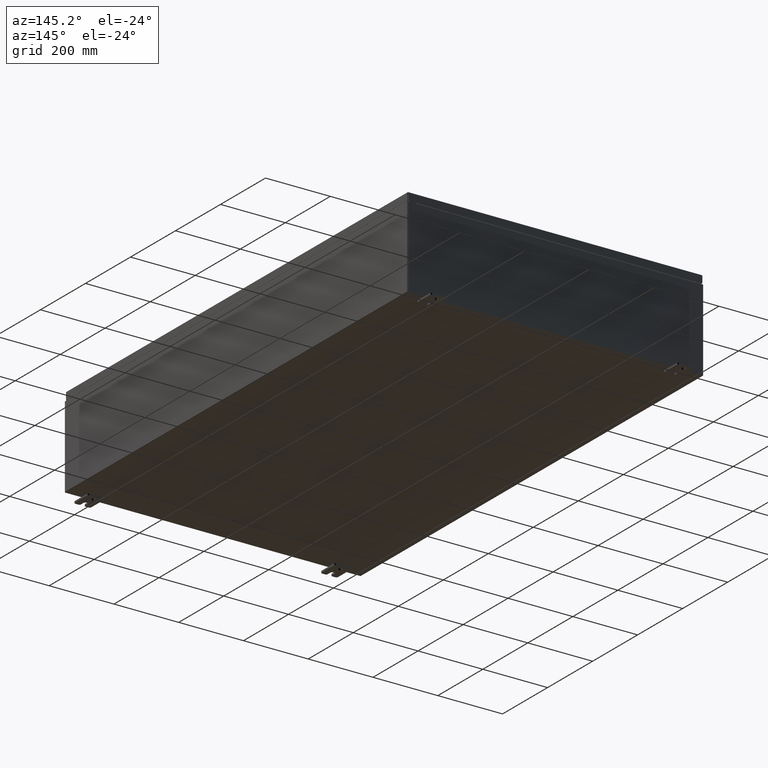
[diagram: clean part render]
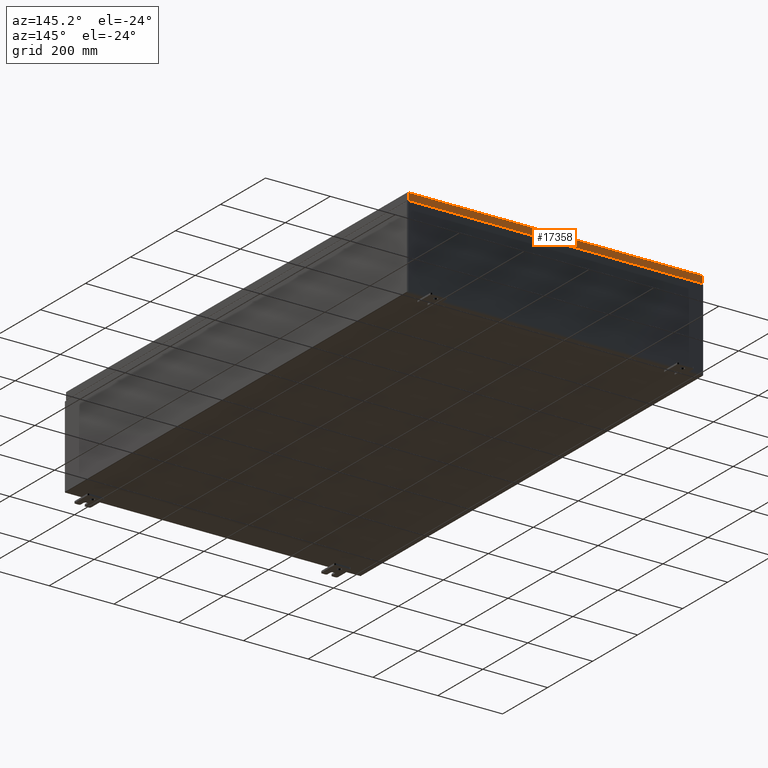
[diagram: same view with one face highlighted and labeled with its STEP entity id]
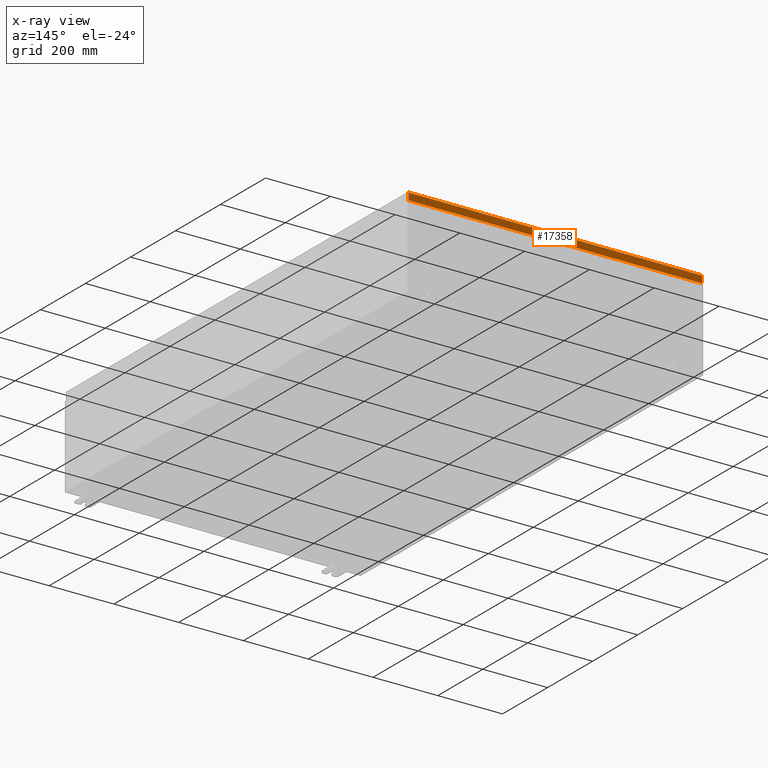
[diagram: x-ray of the same camera — body ghosted, the highlighted face saturated]
A machine part, auxiliary view. The second image highlights one B-rep face of the part: STEP entity #17358.
The next image is the same camera in x-ray: the body ghosted, the highlighted face saturated — about 0% of this face is hidden behind the body in this view.
In plain terms, the highlighted planar face has unit normal (0, -1, -0).
Its self-contained STEP definition (entity closure, byte-faithful):
#1224 = CARTESIAN_POINT ( 'NONE',  ( -1.847420896432932100E-029, 29.93750000000000700, 1.518894566415475700E-013 ) ) ;
#1255 = CARTESIAN_POINT ( 'NONE',  ( 17.84865786437626800, 29.93750000000000700, 1.518894566415475700E-013 ) ) ;
#2786 = LINE ( 'NONE', #53198, #29495 ) ;
#4546 = CARTESIAN_POINT ( 'NONE',  ( -17.93749999999999600, 29.93750000000000700, -0.08769999999999550400 ) ) ;
#9261 = EDGE_CURVE ( 'NONE', #26792, #51749, #12856, .T. ) ;
#12856 = LINE ( 'NONE', #4546, #41320 ) ;
#14862 = VERTEX_POINT ( 'NONE', #43877 ) ;
#15089 = VECTOR ( 'NONE', #38656, 39.37007874015748100 ) ;
#15780 = ORIENTED_EDGE ( 'NONE', *, *, #9261, .F. ) ;
#15812 = DIRECTION ( 'NONE',  ( 1.000000000000000000, 1.751623080406021300E-046, 1.218385167906012900E-016 ) ) ;
#16660 = CARTESIAN_POINT ( 'NONE',  ( 17.84865786437626800, 29.93750000000001100, -0.9376999999999997600 ) ) ;
#17302 = DIRECTION ( 'NONE',  ( 6.170925750089124300E-031, -1.000000000000000000, -5.064839849203706200E-015 ) ) ;
#17358 = ADVANCED_FACE ( 'NONE', ( #45728 ), #33253, .F. ) ;
#18042 = EDGE_CURVE ( 'NONE', #51749, #14862, #46199, .T. ) ;
#21432 = DIRECTION ( 'NONE',  ( -0.0000000000000000000, 5.064839849203706200E-015, -1.000000000000000000 ) ) ;
#22115 = ORIENTED_EDGE ( 'NONE', *, *, #50419, .T. ) ;
#26792 = VERTEX_POINT ( 'NONE', #59974 ) ;
#29325 = LINE ( 'NONE', #1255, #15089 ) ;
#29495 = VECTOR ( 'NONE', #15812, 39.37007874015748100 ) ;
#31966 = VECTOR ( 'NONE', #21432, 39.37007874015748100 ) ;
#33253 = PLANE ( 'NONE',  #54943 ) ;
#38656 = DIRECTION ( 'NONE',  ( 0.0000000000000000000, 5.064839849203706200E-015, -1.000000000000000000 ) ) ;
#40358 = EDGE_LOOP ( 'NONE', ( #15780, #22115, #50144, #60896 ) ) ;
#41320 = VECTOR ( 'NONE', #41909, 39.37007874015748100 ) ;
#41909 = DIRECTION ( 'NONE',  ( -1.000000000000000000, -6.170925750089125200E-031, -3.189293793798670500E-045 ) ) ;
#43877 = CARTESIAN_POINT ( 'NONE',  ( -17.84865786437626400, 29.93750000000001100, -0.9377000000000042000 ) ) ;
#45728 = FACE_OUTER_BOUND ( 'NONE', #40358, .T. ) ;
#46199 = LINE ( 'NONE', #48089, #31966 ) ;
#47599 = CARTESIAN_POINT ( 'NONE',  ( -17.84865786437626800, 29.93750000000000700, -0.08769999999999550400 ) ) ;
#48089 = CARTESIAN_POINT ( 'NONE',  ( -17.84865786437626400, 29.93750000000000700, -0.07469999999999962800 ) ) ;
#50144 = ORIENTED_EDGE ( 'NONE', *, *, #61316, .F. ) ;
#50419 = EDGE_CURVE ( 'NONE', #26792, #53229, #29325, .T. ) ;
#51749 = VERTEX_POINT ( 'NONE', #47599 ) ;
#53198 = CARTESIAN_POINT ( 'NONE',  ( -17.93749999999999600, 29.93750000000001100, -0.9377000000000042000 ) ) ;
#53229 = VERTEX_POINT ( 'NONE', #16660 ) ;
#54707 = DIRECTION ( 'NONE',  ( 0.0000000000000000000, 5.064839849203706200E-015, -1.000000000000000000 ) ) ;
#54943 = AXIS2_PLACEMENT_3D ( 'NONE', #1224, #17302, #54707 ) ;
#59974 = CARTESIAN_POINT ( 'NONE',  ( 17.84865786437626800, 29.93750000000000700, -0.08769999999999550400 ) ) ;
#60896 = ORIENTED_EDGE ( 'NONE', *, *, #18042, .F. ) ;
#61316 = EDGE_CURVE ( 'NONE', #14862, #53229, #2786, .T. ) ;